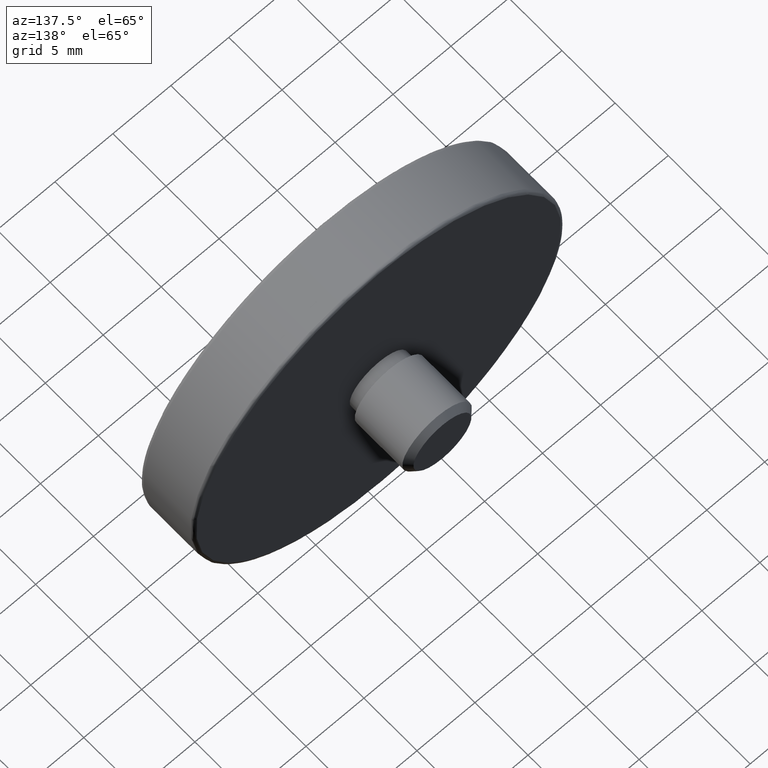
[diagram: clean part render]
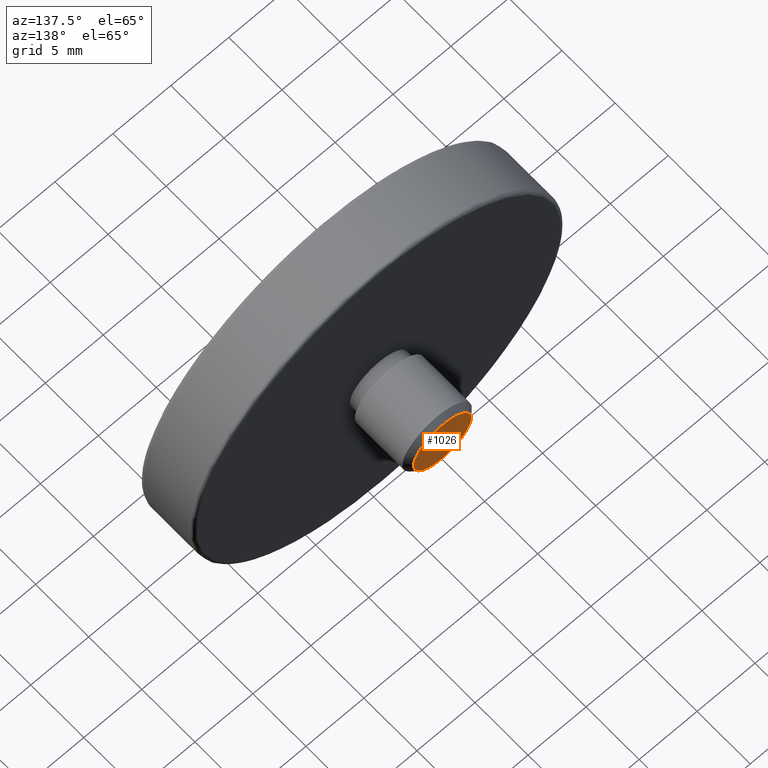
[diagram: same view with one face highlighted and labeled with its STEP entity id]
A machine part, auxiliary view. The second image highlights one B-rep face of the part: STEP entity #1026.
In plain terms, the highlighted planar face has unit normal (0, 1, 0).
Its self-contained STEP definition (entity closure, byte-faithful):
#9 = CARTESIAN_POINT ( 'NONE',  ( -0.5807087718688666023, 5.848425263202487123, 32.00000000000000000 ) ) ;
#38 = DIRECTION ( 'NONE',  ( 0.000000000000000000, -1.000000000000000000, 0.000000000000000000 ) ) ;
#45 = DIRECTION ( 'NONE',  ( 0.000000000000000000, -0.000000000000000000, 1.000000000000000000 ) ) ;
#48 = CIRCLE ( 'NONE', #1102, 2.499999999997726263 ) ;
#170 = CARTESIAN_POINT ( 'NONE',  ( -0.5807087718688666023, 5.848425263202487123, 29.50000000000227374 ) ) ;
#176 = VERTEX_POINT ( 'NONE', #170 ) ;
#178 = EDGE_CURVE ( 'NONE', #176, #176, #48, .T. ) ;
#318 = DIRECTION ( 'NONE',  ( 0.000000000000000000, 0.000000000000000000, -1.000000000000000000 ) ) ;
#640 = FACE_OUTER_BOUND ( 'NONE', #1070, .T. ) ;
#726 = PLANE ( 'NONE',  #943 ) ;
#943 = AXIS2_PLACEMENT_3D ( 'NONE', #1206, #1023, #45 ) ;
#1023 = DIRECTION ( 'NONE',  ( 0.000000000000000000, 1.000000000000000000, 0.000000000000000000 ) ) ;
#1026 = ADVANCED_FACE ( 'NONE', ( #640 ), #726, .T. ) ;
#1070 = EDGE_LOOP ( 'NONE', ( #1145 ) ) ;
#1102 = AXIS2_PLACEMENT_3D ( 'NONE', #9, #38, #318 ) ;
#1145 = ORIENTED_EDGE ( 'NONE', *, *, #178, .F. ) ;
#1206 = CARTESIAN_POINT ( 'NONE',  ( -0.5807087718688666023, 5.848425263121542095, 32.00000000000000000 ) ) ;